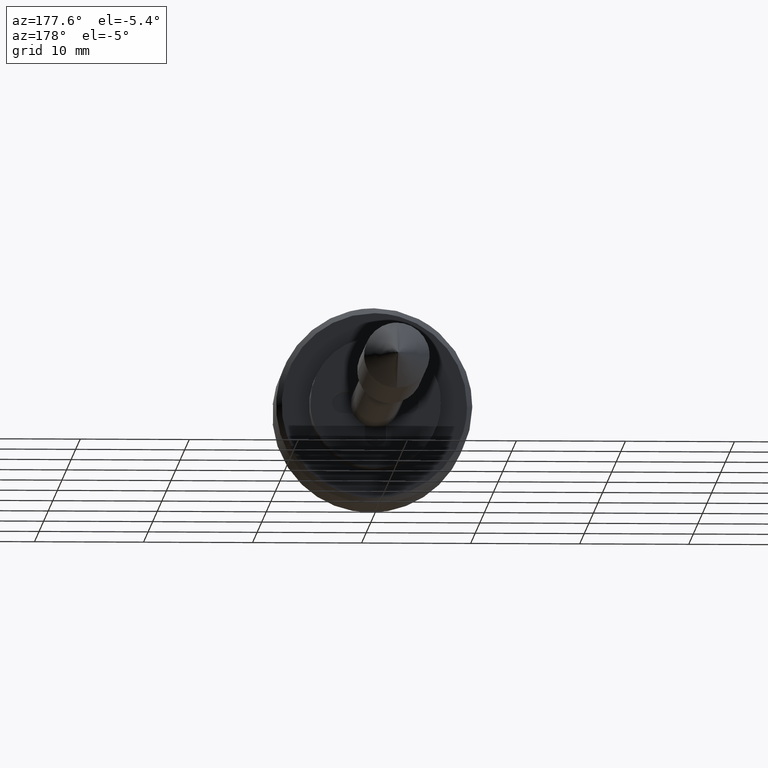
[diagram: clean part render]
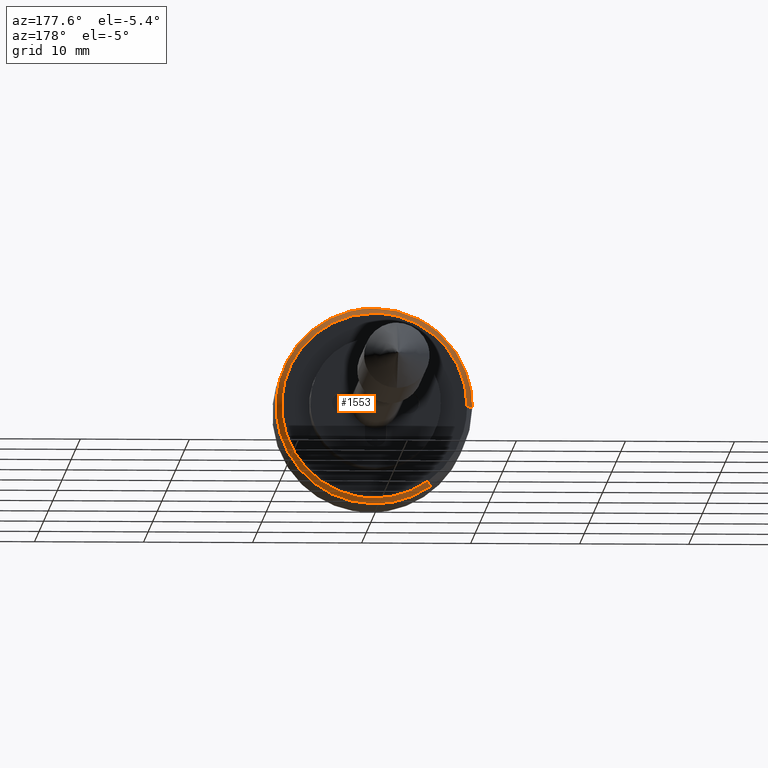
[diagram: same view with one face highlighted and labeled with its STEP entity id]
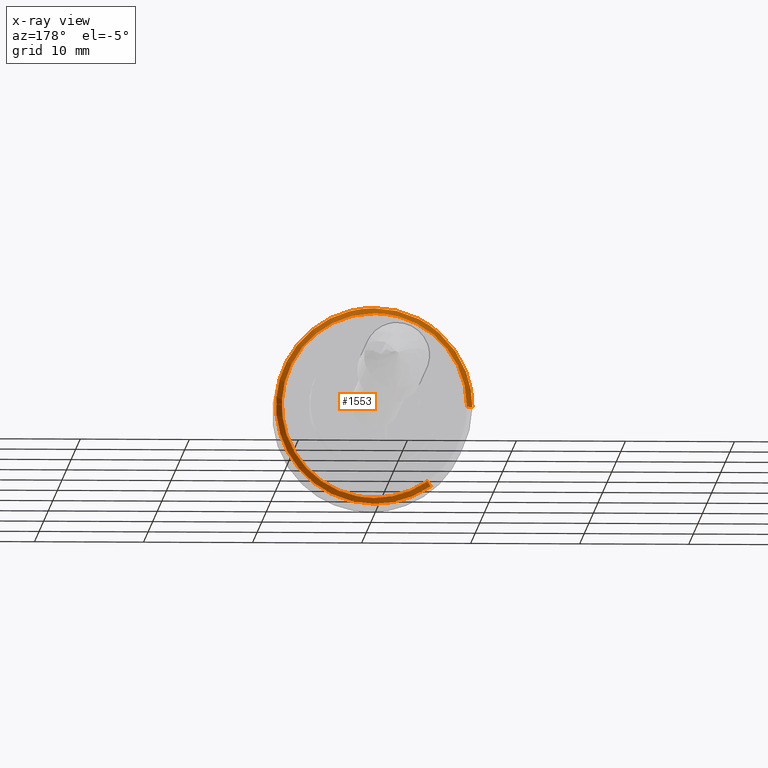
[diagram: x-ray of the same camera — body ghosted, the highlighted face saturated]
A machine part, auxiliary view. The second image highlights one B-rep face of the part: STEP entity #1553.
The next image is the same camera in x-ray: the body ghosted, the highlighted face saturated — about 0% of this face is hidden behind the body in this view.
In plain terms, the highlighted face is a freeform B-spline surface patch.
Its self-contained STEP definition (entity closure, byte-faithful):
#1383=CARTESIAN_POINT('',(-1.987500000000001,4.871694058989064,-6.950126131633201));
#1384=CARTESIAN_POINT('',(-1.987500000000001,2.645031824215980,-8.510906033331226));
#1385=CARTESIAN_POINT('',(-1.987500000000001,-0.074066470042448,-8.487176822007154));
#1386=CARTESIAN_POINT('',(-1.987500000000001,-8.561243292049602,-8.413110351964706));
#1387=CARTESIAN_POINT('',(-1.987500000000001,-8.487176822007154,0.074066470042448));
#1388=CARTESIAN_POINT('',(-1.987500000000001,-8.413110351964706,8.561243292049602));
#1389=CARTESIAN_POINT('',(-1.987500000000001,0.074066470042448,8.487176822007154));
#1390=CARTESIAN_POINT('',(-1.987500000000001,8.561243292049602,8.413110351964706));
#1391=CARTESIAN_POINT('',(-1.987500000000001,8.487176822007154,-0.074066470042448));
#1392=CARTESIAN_POINT('',(-2.512812499999944,5.173215329723990,-7.380286736466609));
#1393=CARTESIAN_POINT('',(-2.512812499999944,2.808739427180158,-9.037667190990643));
#1394=CARTESIAN_POINT('',(-2.512812499999944,-0.078650628221438,-9.012469319716800));
#1395=CARTESIAN_POINT('',(-2.512812499999944,-9.091119947938237,-8.933818691495363));
#1396=CARTESIAN_POINT('',(-2.512812499999944,-9.012469319716800,0.078650628221438));
#1397=CARTESIAN_POINT('',(-2.512812499999944,-8.933818691495363,9.091119947938237));
#1398=CARTESIAN_POINT('',(-2.512812499999944,0.078650628221438,9.012469319716800));
#1399=CARTESIAN_POINT('',(-2.512812499999944,9.091119947938237,8.933818691495363));
#1400=CARTESIAN_POINT('',(-2.512812499999944,9.012469319716800,-0.078650628221438));
#1408=(BOUNDED_SURFACE()B_SPLINE_SURFACE(2,1,((#1383,#1392),(#1384,#1393),(#1385,#1394),(#1386,#1395),(#1387,#1396),(#1388,#1397),(#1389,#1398),(#1390,#1399),(#1391,#1400)),.UNSPECIFIED.,.F.,.F.,.U.)B_SPLINE_SURFACE_WITH_KNOTS((3,2,2,2,3),(2,2),(0.0,5.973166676201216,20.906083366704259,35.839000057207294,50.771916747710343),(0.0,1.0),.UNSPECIFIED.)GEOMETRIC_REPRESENTATION_ITEM()RATIONAL_B_SPLINE_SURFACE(((0.859411254969543,0.859411254969543),(0.882842712474619,0.882842712474619),(1.0,1.0),(0.707106781186548,0.707106781186548),(1.0,1.0),(0.707106781186548,0.707106781186548),(1.0,1.0),(0.707106781186548,0.707106781186548),(1.0,1.0)))REPRESENTATION_ITEM('')SURFACE());
#1409=CARTESIAN_POINT('',(-2.500000000001419,5.165861152417886,-7.369795014379047));
#1410=VERTEX_POINT('',#1409);
#1411=CARTESIAN_POINT('',(-2.499999999999945,0.0,-9.0));
#1412=VERTEX_POINT('',#1411);
#1413=CARTESIAN_POINT('',(-2.500000000001418,5.165861152417886,-7.369795014379046));
#1414=CARTESIAN_POINT('',(-2.499999999999945,2.840154707571253,-9.0));
#1415=CARTESIAN_POINT('',(-2.499999999999945,0.0,-9.0));
#1423=(BOUNDED_CURVE()B_SPLINE_CURVE(2,(#1413,#1414,#1415),.UNSPECIFIED.,.F.,.U.)B_SPLINE_CURVE_WITH_KNOTS((3,3),(0.901326273795970,1.0),.UNSPECIFIED.)CURVE()GEOMETRIC_REPRESENTATION_ITEM()RATIONAL_B_SPLINE_CURVE((0.860049271925301,0.884396538879138,1.0))REPRESENTATION_ITEM(''));
#1424=EDGE_CURVE('',#1410,#1412,#1423,.T.);
#1425=ORIENTED_EDGE('',*,*,#1424,.F.);
#1426=CARTESIAN_POINT('',(-2.000000000000818,4.878868866161615,-6.960361958031549));
#1427=VERTEX_POINT('',#1426);
#1428=CARTESIAN_POINT('',(-2.000000000000818,4.878868866161615,-6.960361958031549));
#1429=CARTESIAN_POINT('',(-2.500000000001419,5.165861152417886,-7.369795014379047));
#1430=QUASI_UNIFORM_CURVE('',1,(#1428,#1429),.UNSPECIFIED.,.F.,.U.);
#1431=EDGE_CURVE('',#1427,#1410,#1430,.T.);
#1432=ORIENTED_EDGE('',*,*,#1431,.F.);
#1433=CARTESIAN_POINT('',(-2.0,0.0,-8.500000000000000));
#1434=VERTEX_POINT('',#1433);
#1435=CARTESIAN_POINT('',(-2.0,0.0,-8.500000000000000));
#1436=CARTESIAN_POINT('',(-2.000000000000000,2.682368334914302,-8.500000000000000));
#1437=CARTESIAN_POINT('',(-2.000000000000818,4.878868866161615,-6.960361958031549));
#1445=(BOUNDED_CURVE()B_SPLINE_CURVE(2,(#1435,#1436,#1437),.UNSPECIFIED.,.F.,.U.)B_SPLINE_CURVE_WITH_KNOTS((3,3),(0.0,0.098673726203571),.UNSPECIFIED.)CURVE()GEOMETRIC_REPRESENTATION_ITEM()RATIONAL_B_SPLINE_CURVE((1.0,0.884396538879675,0.860049271925527))REPRESENTATION_ITEM(''));
#1446=EDGE_CURVE('',#1434,#1427,#1445,.T.);
#1447=ORIENTED_EDGE('',*,*,#1446,.F.);
#1448=CARTESIAN_POINT('',(-2.0,0.0,8.500000000000000));
#1449=VERTEX_POINT('',#1448);
#1450=CARTESIAN_POINT('',(-2.0,0.0,8.500000000000000));
#1451=CARTESIAN_POINT('',(-2.000000000000000,-8.500000000000002,8.500000000000002));
#1452=CARTESIAN_POINT('',(-2.0,-8.500000000000000,0.0));
#1453=CARTESIAN_POINT('',(-2.000000000000000,-8.500000000000002,-8.500000000000002));
#1454=CARTESIAN_POINT('',(-2.0,0.0,-8.500000000000000));
#1462=(BOUNDED_CURVE()B_SPLINE_CURVE(2,(#1450,#1451,#1452,#1453,#1454),.UNSPECIFIED.,.F.,.U.)B_SPLINE_CURVE_WITH_KNOTS((3,2,3),(0.500000000000000,0.750000000000000,1.0),.UNSPECIFIED.)CURVE()GEOMETRIC_REPRESENTATION_ITEM()RATIONAL_B_SPLINE_CURVE((1.0,0.707106781186548,1.0,0.707106781186548,1.0))REPRESENTATION_ITEM(''));
#1463=EDGE_CURVE('',#1449,#1434,#1462,.T.);
#1464=ORIENTED_EDGE('',*,*,#1463,.F.);
#1465=CARTESIAN_POINT('',(-2.000000000001769,8.499676346047110,-0.074175551749128));
#1466=VERTEX_POINT('',#1465);
#1467=CARTESIAN_POINT('',(-2.000000000001769,8.499676346047110,-0.074175551749128));
#1468=CARTESIAN_POINT('',(-2.0,8.500000000000000,-0.037088481988899));
#1469=CARTESIAN_POINT('',(-2.0,8.500000000000000,0.0));
#1470=CARTESIAN_POINT('',(-2.000000000000000,8.500000000000002,8.500000000000002));
#1471=CARTESIAN_POINT('',(-2.0,0.0,8.500000000000000));
#1479=(BOUNDED_CURVE()B_SPLINE_CURVE(2,(#1467,#1468,#1469,#1470,#1471),.UNSPECIFIED.,.F.,.U.)B_SPLINE_CURVE_WITH_KNOTS((3,2,3),(0.248460105664477,0.250000000000000,0.500000000000000),.UNSPECIFIED.)CURVE()GEOMETRIC_REPRESENTATION_ITEM()RATIONAL_B_SPLINE_CURVE((0.996414028099165,0.998195901565744,1.0,0.707106781186548,1.0))REPRESENTATION_ITEM(''));
#1480=EDGE_CURVE('',#1466,#1449,#1479,.T.);
#1481=ORIENTED_EDGE('',*,*,#1480,.F.);
#1482=CARTESIAN_POINT('',(-2.500000000009441,8.999657307586432,-0.078538819554905));
#1483=VERTEX_POINT('',#1482);
#1484=CARTESIAN_POINT('',(-2.000000000001769,8.499676346047110,-0.074175551749128));
#1485=CARTESIAN_POINT('',(-2.500000000009441,8.999657307586432,-0.078538819554905));
#1486=QUASI_UNIFORM_CURVE('',1,(#1484,#1485),.UNSPECIFIED.,.F.,.U.);
#1487=EDGE_CURVE('',#1466,#1483,#1486,.T.);
#1488=ORIENTED_EDGE('',*,*,#1487,.T.);
#1489=CARTESIAN_POINT('',(-2.499999999999945,5.963579053005738,6.740602708849393));
#1490=VERTEX_POINT('',#1489);
#1491=CARTESIAN_POINT('',(-2.499999999999945,5.963579053005738,6.740602708849393));
#1492=CARTESIAN_POINT('',(-2.499999999999945,9.0,4.054205492198701));
#1493=CARTESIAN_POINT('',(-2.499999999999945,9.0,0.0));
#1494=CARTESIAN_POINT('',(-2.499999999999944,9.0,-0.039270157455786));
#1495=CARTESIAN_POINT('',(-2.500000000009440,8.999657307586432,-0.078538819554905));
#1503=(BOUNDED_CURVE()B_SPLINE_CURVE(2,(#1491,#1492,#1493,#1494,#1495),.UNSPECIFIED.,.F.,.U.)B_SPLINE_CURVE_WITH_KNOTS((3,2,3),(0.615779857118475,0.750000000000000,0.751539894337706),.UNSPECIFIED.)CURVE()GEOMETRIC_REPRESENTATION_ITEM()RATIONAL_B_SPLINE_CURVE((0.854350163572611,0.842751321287314,1.0,0.998195901563186,0.996414028094113))REPRESENTATION_ITEM(''));
#1504=EDGE_CURVE('',#1490,#1483,#1503,.T.);
#1505=ORIENTED_EDGE('',*,*,#1504,.F.);
#1506=CARTESIAN_POINT('',(-2.499999999999945,0.0,9.0));
#1507=VERTEX_POINT('',#1506);
#1508=CARTESIAN_POINT('',(-2.499999999999945,0.0,9.0));
#1509=CARTESIAN_POINT('',(-2.499999999999945,3.409793924020311,9.0));
#1510=CARTESIAN_POINT('',(-2.499999999999945,5.963579053005738,6.740602708849393));
#1518=(BOUNDED_CURVE()B_SPLINE_CURVE(2,(#1508,#1509,#1510),.UNSPECIFIED.,.F.,.U.)B_SPLINE_CURVE_WITH_KNOTS((3,3),(0.500000000000000,0.615779857118475),.UNSPECIFIED.)CURVE()GEOMETRIC_REPRESENTATION_ITEM()RATIONAL_B_SPLINE_CURVE((1.0,0.864355459899233,0.854350163572611))REPRESENTATION_ITEM(''));
#1519=EDGE_CURVE('',#1507,#1490,#1518,.T.);
#1520=ORIENTED_EDGE('',*,*,#1519,.F.);
#1521=CARTESIAN_POINT('',(-2.499999999999946,-7.070639730085400,5.568307984238757));
#1522=VERTEX_POINT('',#1521);
#1523=CARTESIAN_POINT('',(-2.499999999999946,-7.070639730085400,5.568307984238757));
#1524=CARTESIAN_POINT('',(-2.499999999999945,-4.368095826378223,9.0));
#1525=CARTESIAN_POINT('',(-2.499999999999945,0.0,9.0));
#1533=(BOUNDED_CURVE()B_SPLINE_CURVE(2,(#1523,#1524,#1525),.UNSPECIFIED.,.F.,.U.)B_SPLINE_CURVE_WITH_KNOTS((3,3),(0.357127511979763,0.500000000000000),.UNSPECIFIED.)CURVE()GEOMETRIC_REPRESENTATION_ITEM()RATIONAL_B_SPLINE_CURVE((0.856547235679510,0.832614468415465,1.0))REPRESENTATION_ITEM(''));
#1534=EDGE_CURVE('',#1522,#1507,#1533,.T.);
#1535=ORIENTED_EDGE('',*,*,#1534,.F.);
#1536=CARTESIAN_POINT('',(-2.499999999999945,0.0,-9.0));
#1537=CARTESIAN_POINT('',(-2.499999999999945,-9.0,-9.0));
#1538=CARTESIAN_POINT('',(-2.499999999999945,-9.0,0.0));
#1539=CARTESIAN_POINT('',(-2.499999999999945,-9.0,3.118405052149462));
#1540=CARTESIAN_POINT('',(-2.499999999999946,-7.070639730085400,5.568307984238757));
#1548=(BOUNDED_CURVE()B_SPLINE_CURVE(2,(#1536,#1537,#1538,#1539,#1540),.UNSPECIFIED.,.F.,.U.)B_SPLINE_CURVE_WITH_KNOTS((3,2,3),(0.0,0.250000000000000,0.357127511979763),.UNSPECIFIED.)CURVE()GEOMETRIC_REPRESENTATION_ITEM()RATIONAL_B_SPLINE_CURVE((1.0,0.707106781186547,1.0,0.874492312771082,0.856547235679510))REPRESENTATION_ITEM(''));
#1549=EDGE_CURVE('',#1412,#1522,#1548,.T.);
#1550=ORIENTED_EDGE('',*,*,#1549,.F.);
#1551=EDGE_LOOP('',(#1425,#1432,#1447,#1464,#1481,#1488,#1505,#1520,#1535,#1550));
#1552=FACE_OUTER_BOUND('',#1551,.T.);
#1553=ADVANCED_FACE('',(#1552),#1408,.T.);